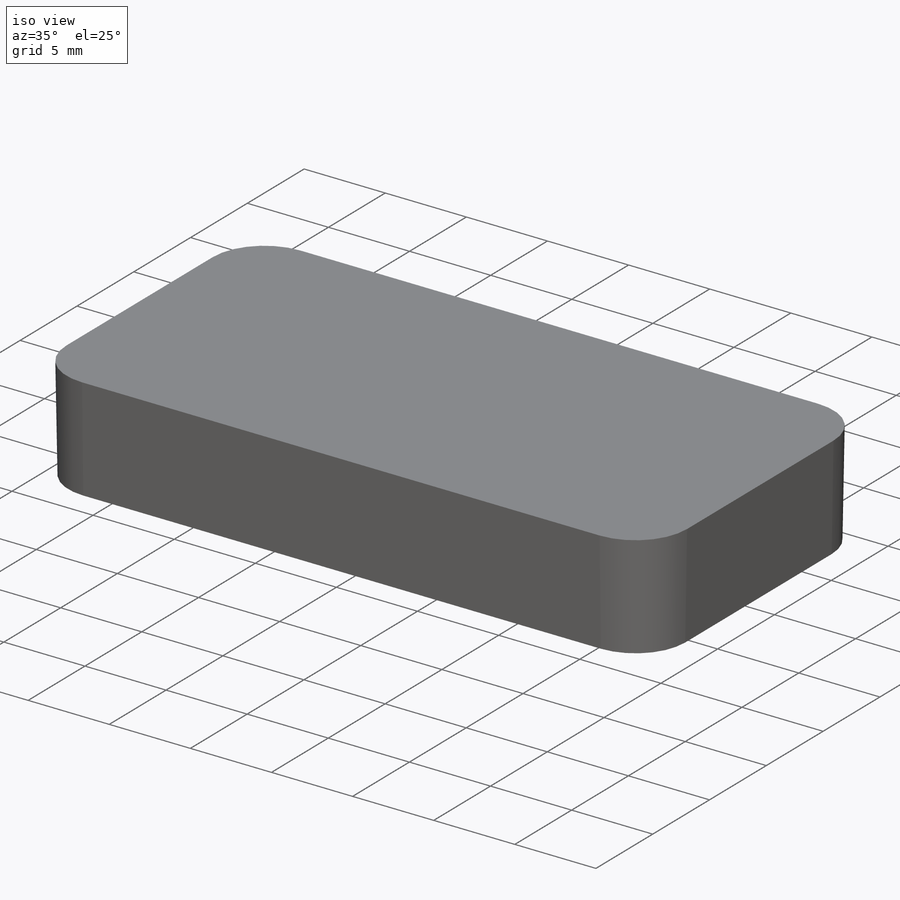
[diagram: iso view]
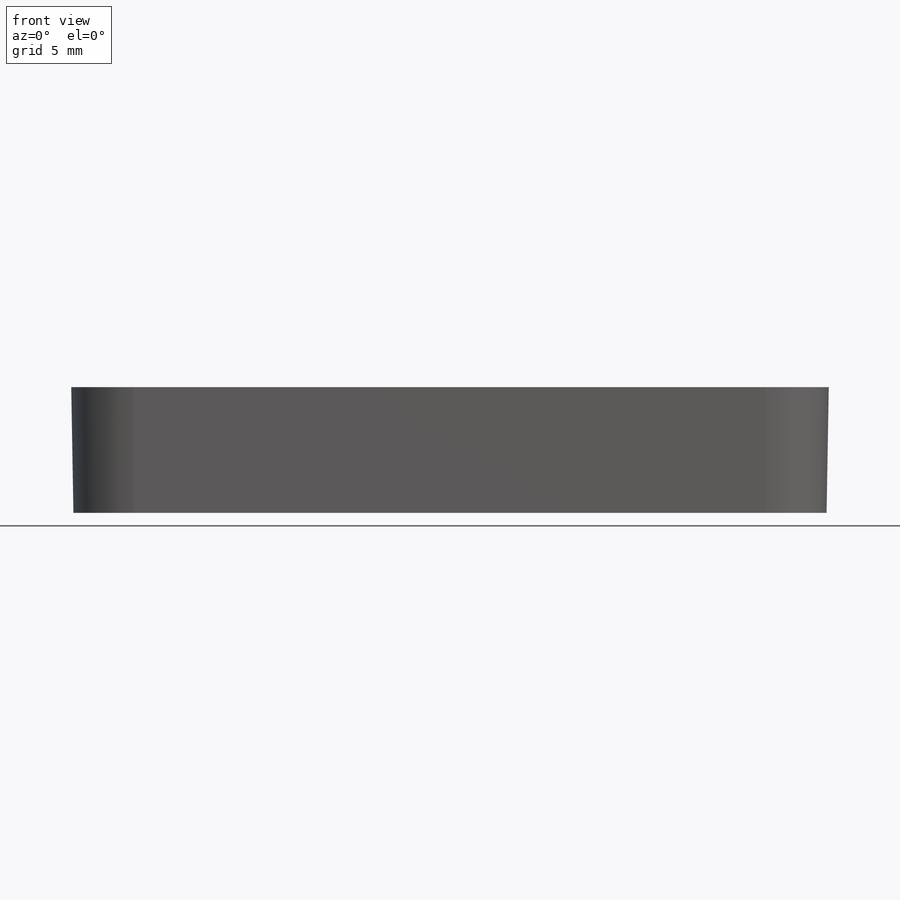
[diagram: front view]
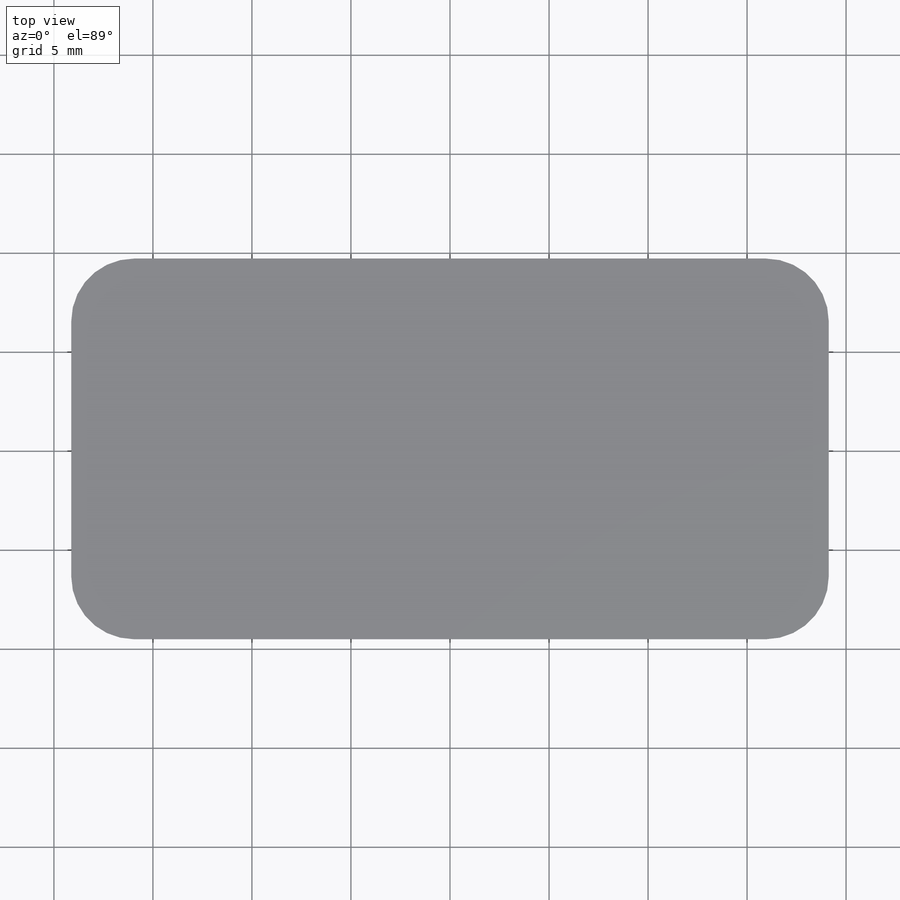
[diagram: top view]
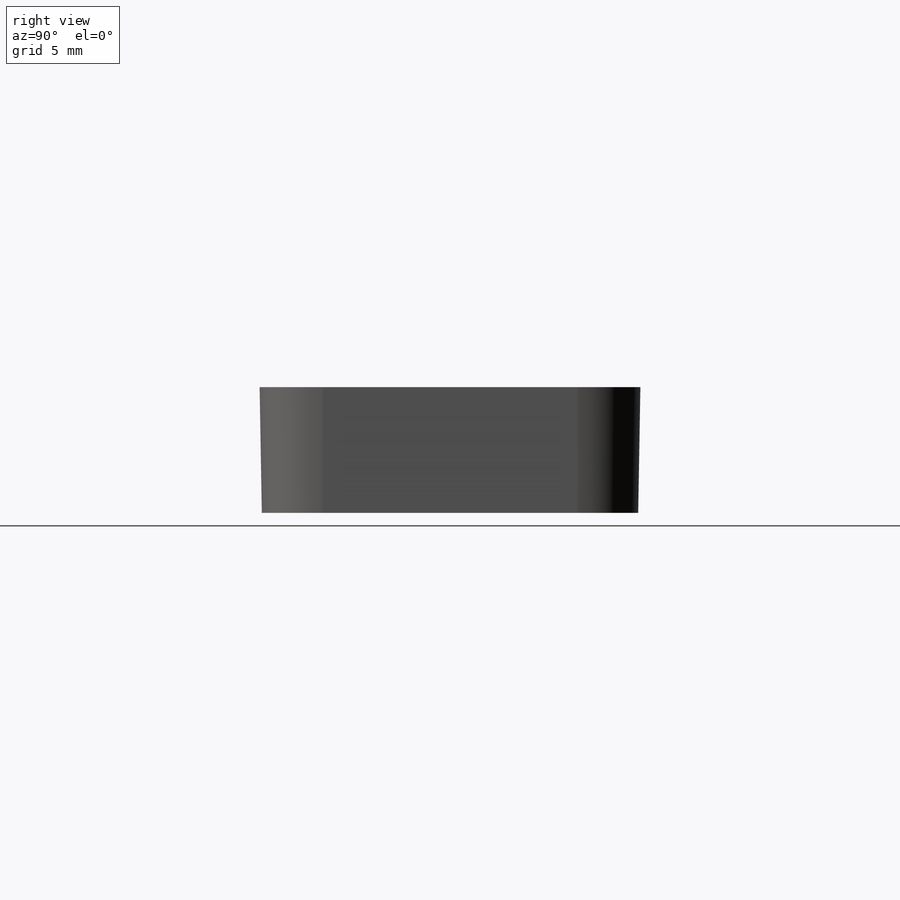
[diagram: right view]
SOLIDWORKS PART (.sldprt)
format: sldprt  version: not decoded by parser v0  size: 883,200 bytes
history: native  units: mm
features: sketch x7, extrude x5, pattern_linear x2, mirror x2, material x1, plane x1, cut_extrude x1 (+12 scaffold rows collapsed)
feature tree (31):
  scaffold x12  (default folders/planes/origin — collapsed)
  material  "CA"
  sketch  "Sketch1"  dims[D3=3.175mm D1=38.2524mm D2=19.2278mm]
  extrude  "Boss-Extrude1"  Depth=2.3622mm
  sketch  "Sketch7"  dims[D1=0.0mm D2=1.778mm]
  extrude  "Boss-Extrude3"  Depth=6.35mm
  sketch  "Sketch8"  dims[c1.D1=~1.360495mm c2.D1=~99.39026deg c2.D2=~2.103247mm c3.D1=~0.718399mm c4.D1=90.0deg c4.D2=1.5875mm]
  extrude  "Boss-Extrude4"  [1 undecoded]
  pattern_linear  "LPattern1"  Count1=12 Count2=12 Spacing1=1.5875mm Spacing2=1.5875mm
  sketch  "Sketch9"  dims[c1.D1=~1.048773mm c2.D1=90.0deg c2.D2=1.5875mm c3.D1=~0.930787mm c4.D1=90.0deg c4.D2=1.5875mm]
  extrude  "Boss-Extrude5"  Depth=17.78mm
  pattern_linear  "LPattern2"  Count1=6 Count2=6 Spacing1=1.5875mm Spacing2=1.5875mm
  plane  "Plane1"  Offset=0.762mm
  sketch  "Sketch10"  dims[c1.D2=2.3622mm c1.D1=~2.966264mm c2.D1=45.0deg c2.D3=0.508mm]
  extrude  "Boss-Extrude6"  [1 undecoded]
  sketch  "Sketch11"
  cut_extrude  "Cut-Extrude1"  [1 undecoded]
  mirror  "Mirror1"
  mirror  "Mirror2"
  sketch  "Sketch11 - OFFSET .005"  dims[D1=0.127mm]
decode coverage: 11 of 17 modeling features carry decoded parameters
note: ~ marks probable driven/reference dimensions
note: 3 parameter values undecoded
summary: no parameter record found for 3 features
note: suppression state not decoded; provenance and decode notes live in map.json
